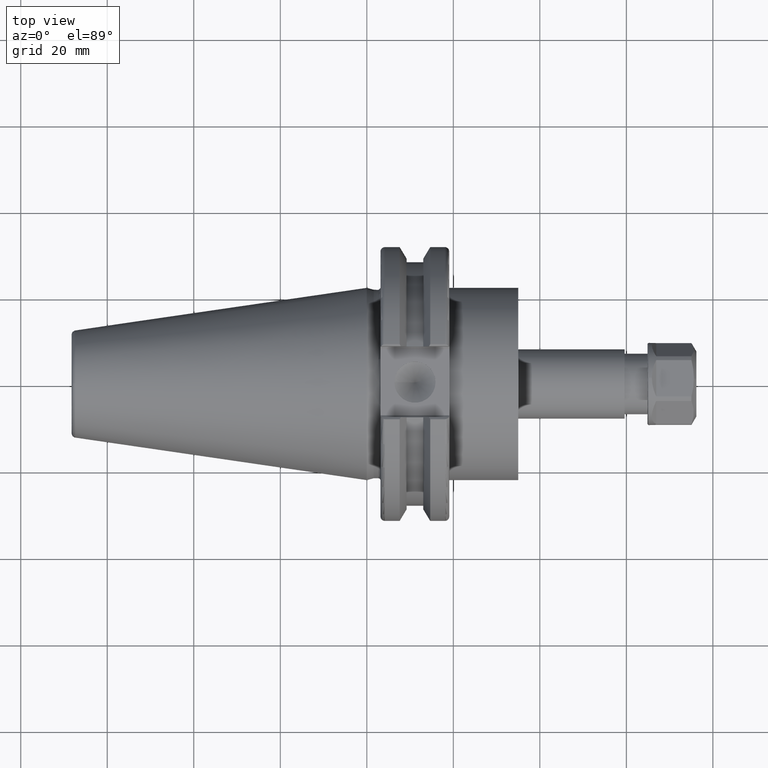
[diagram: clean part render]
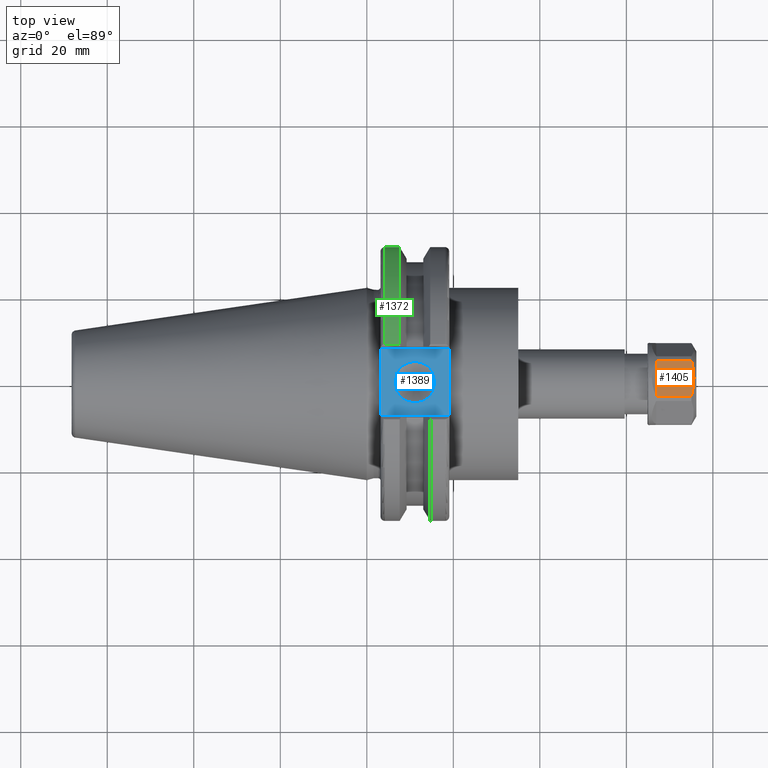
[diagram: same view with three faces highlighted in distinct colors, each labeled with its STEP entity id]
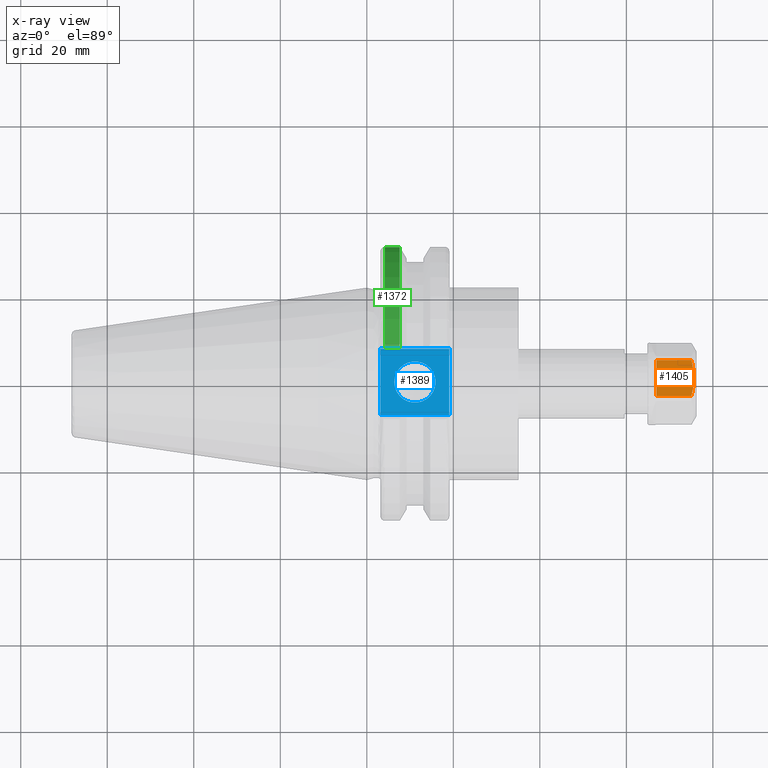
[diagram: x-ray of the same camera — body ghosted, the three highlighted faces saturated]
A machine part, top view with three faces highlighted in distinct colors.
The next image is the same camera in x-ray (body ghosted, the three faces saturated) — at least one of them is partly hidden behind the body in this view.
Their STEP definitions:

[orange] entity #1405 — the highlighted planar face has unit normal (0, -0.1388, -0.9903).
#50=(
BOUNDED_CURVE()
B_SPLINE_CURVE(2,(#2508,#2509,#2510),.UNSPECIFIED.,.F.,.F.)
B_SPLINE_CURVE_WITH_KNOTS((3,3),(1.71636261954149,2.57759920770742),
 .UNSPECIFIED.)
CURVE()
GEOMETRIC_REPRESENTATION_ITEM()
RATIONAL_B_SPLINE_CURVE((1.88000685099763,1.99059548929171,1.99059548929171))
REPRESENTATION_ITEM('')
);
#56=(
BOUNDED_CURVE()
B_SPLINE_CURVE(2,(#2543,#2544,#2545),.UNSPECIFIED.,.F.,.F.)
B_SPLINE_CURVE_WITH_KNOTS((3,3),(2.57759920770742,3.43883579587335),
 .UNSPECIFIED.)
CURVE()
GEOMETRIC_REPRESENTATION_ITEM()
RATIONAL_B_SPLINE_CURVE((1.99059548929171,1.99059548929171,1.88000685099763))
REPRESENTATION_ITEM('')
);
#128=PLANE('',#1624);
#220=FACE_OUTER_BOUND('',#313,.T.);
#313=EDGE_LOOP('',(#1286,#1287,#1288,#1289,#1290));
#403=LINE('',#2567,#496);
#405=LINE('',#2577,#498);
#410=LINE('',#2591,#503);
#496=VECTOR('',#1990,8.145299461621);
#498=VECTOR('',#2000,8.145299461621);
#503=VECTOR('',#2015,8.485281374239);
#678=VERTEX_POINT('',#2506);
#679=VERTEX_POINT('',#2507);
#690=VERTEX_POINT('',#2541);
#697=VERTEX_POINT('',#2566);
#701=VERTEX_POINT('',#2575);
#866=EDGE_CURVE('',#678,#679,#50,.T.);
#878=EDGE_CURVE('',#679,#690,#56,.T.);
#890=EDGE_CURVE('',#697,#678,#403,.T.);
#896=EDGE_CURVE('',#701,#690,#405,.T.);
#904=EDGE_CURVE('',#697,#701,#410,.T.);
#1286=ORIENTED_EDGE('',*,*,#904,.F.);
#1287=ORIENTED_EDGE('',*,*,#890,.T.);
#1288=ORIENTED_EDGE('',*,*,#866,.T.);
#1289=ORIENTED_EDGE('',*,*,#878,.T.);
#1290=ORIENTED_EDGE('',*,*,#896,.F.);
#1405=ADVANCED_FACE('',(#220),#128,.F.);
#1624=AXIS2_PLACEMENT_3D('',#2592,#2016,#2017);
#1990=DIRECTION('',(1.,0.,0.));
#2000=DIRECTION('',(1.,0.,0.));
#2015=DIRECTION('',(0.,1.,0.));
#2016=DIRECTION('center_axis',(0.,0.,-1.));
#2017=DIRECTION('ref_axis',(0.,1.,0.));
#2506=CARTESIAN_POINT('',(4.495299461621,-4.242640687119,8.5));
#2507=CARTESIAN_POINT('',(5.07264973081011,5.20474889637625E-16,8.5));
#2508=CARTESIAN_POINT('Ctrl Pts',(4.49529946161998,-4.24264068712126,8.5));
#2509=CARTESIAN_POINT('Ctrl Pts',(5.07264973081011,-2.00346921336272,8.5));
#2510=CARTESIAN_POINT('Ctrl Pts',(5.07264973081011,0.,8.5));
#2541=CARTESIAN_POINT('',(4.495299461621,4.242640687119,8.5));
#2543=CARTESIAN_POINT('Ctrl Pts',(5.07264973081011,0.,8.5));
#2544=CARTESIAN_POINT('Ctrl Pts',(5.07264973081011,2.00346921336272,8.5));
#2545=CARTESIAN_POINT('Ctrl Pts',(4.49529946161998,4.24264068712127,8.5));
#2566=CARTESIAN_POINT('',(-3.65,-4.242640687119,8.5));
#2567=CARTESIAN_POINT('',(-3.65,-4.242640687119,8.5));
#2575=CARTESIAN_POINT('',(-3.65,4.242640687119,8.5));
#2577=CARTESIAN_POINT('',(-3.65,4.242640687119,8.5));
#2591=CARTESIAN_POINT('',(-3.65,-4.242640687119,8.5));
#2592=CARTESIAN_POINT('Origin',(5.65,-10.,8.5));

[blue] entity #1389 — the highlighted planar face has unit normal (0, 0, 1).
#87=FACE_BOUND('',#293,.T.);
#120=PLANE('',#1583);
#204=FACE_OUTER_BOUND('',#292,.T.);
#292=EDGE_LOOP('',(#1194,#1195,#1196,#1197));
#293=EDGE_LOOP('',(#1198));
#332=LINE('',#2109,#425);
#351=LINE('',#2206,#444);
#376=LINE('',#2394,#469);
#378=LINE('',#2397,#471);
#425=VECTOR('',#1715,10.);
#444=VECTOR('',#1752,10.);
#469=VECTOR('',#1831,10.);
#471=VECTOR('',#1835,10.);
#547=CIRCLE('',#1566,4.7625);
#592=VERTEX_POINT('',#2106);
#593=VERTEX_POINT('',#2108);
#618=VERTEX_POINT('',#2203);
#619=VERTEX_POINT('',#2205);
#669=VERTEX_POINT('',#2454);
#735=EDGE_CURVE('',#592,#593,#332,.T.);
#766=EDGE_CURVE('',#618,#619,#351,.T.);
#820=EDGE_CURVE('',#619,#592,#376,.T.);
#822=EDGE_CURVE('',#593,#618,#378,.T.);
#844=EDGE_CURVE('',#669,#669,#547,.T.);
#1194=ORIENTED_EDGE('',*,*,#820,.F.);
#1195=ORIENTED_EDGE('',*,*,#766,.F.);
#1196=ORIENTED_EDGE('',*,*,#822,.F.);
#1197=ORIENTED_EDGE('',*,*,#735,.F.);
#1198=ORIENTED_EDGE('',*,*,#844,.T.);
#1389=ADVANCED_FACE('',(#204,#87),#120,.T.);
#1566=AXIS2_PLACEMENT_3D('',#2455,#1878,#1879);
#1583=AXIS2_PLACEMENT_3D('',#2473,#1913,#1914);
#1715=DIRECTION('',(0.,1.,0.));
#1752=DIRECTION('',(0.,-1.,0.));
#1831=DIRECTION('',(-1.,1.31581988103722E-16,0.));
#1835=DIRECTION('',(1.,0.,0.));
#1878=DIRECTION('center_axis',(0.,0.,-1.));
#1879=DIRECTION('ref_axis',(1.,0.,0.));
#1913=DIRECTION('center_axis',(0.,0.,1.));
#1914=DIRECTION('ref_axis',(1.,0.,0.));
#2106=CARTESIAN_POINT('',(3.175,-7.68999999999999,25.));
#2108=CARTESIAN_POINT('',(3.175,7.69,25.));
#2109=CARTESIAN_POINT('',(3.175,15.875,25.));
#2203=CARTESIAN_POINT('',(19.05,7.69,25.));
#2205=CARTESIAN_POINT('',(19.05,-7.69,25.));
#2206=CARTESIAN_POINT('',(19.05,0.,25.));
#2394=CARTESIAN_POINT('',(9.44125,-7.69,25.));
#2397=CARTESIAN_POINT('',(17.87875,7.69,25.));
#2454=CARTESIAN_POINT('',(6.3645,-5.83238038093927E-16,25.));
#2455=CARTESIAN_POINT('Origin',(11.127,0.,25.));
#2473=CARTESIAN_POINT('Origin',(15.7075,0.,25.));

[green] entity #1372 — the highlighted cylindrical surface (partial cylindrical patch) has radius 31.75 mm, axis along (1, 0, 0).
#187=FACE_OUTER_BOUND('',#275,.T.);
#275=EDGE_LOOP('',(#1119,#1120,#1121,#1122));
#372=LINE('',#2369,#465);
#386=LINE('',#2428,#479);
#465=VECTOR('',#1801,10.);
#479=VECTOR('',#1853,10.);
#535=CIRCLE('',#1534,31.75);
#543=CIRCLE('',#1555,31.75);
#649=VERTEX_POINT('',#2342);
#650=VERTEX_POINT('',#2351);
#651=VERTEX_POINT('',#2368);
#665=VERTEX_POINT('',#2427);
#806=EDGE_CURVE('',#649,#650,#535,.T.);
#809=EDGE_CURVE('',#650,#651,#372,.T.);
#834=EDGE_CURVE('',#665,#649,#386,.T.);
#835=EDGE_CURVE('',#651,#665,#543,.T.);
#1119=ORIENTED_EDGE('',*,*,#806,.F.);
#1120=ORIENTED_EDGE('',*,*,#834,.F.);
#1121=ORIENTED_EDGE('',*,*,#835,.F.);
#1122=ORIENTED_EDGE('',*,*,#809,.F.);
#1324=CYLINDRICAL_SURFACE('',#1554,31.75);
#1372=ADVANCED_FACE('',(#187),#1324,.T.);
#1534=AXIS2_PLACEMENT_3D('',#2352,#1797,#1798);
#1554=AXIS2_PLACEMENT_3D('',#2426,#1851,#1852);
#1555=AXIS2_PLACEMENT_3D('',#2429,#1854,#1855);
#1797=DIRECTION('center_axis',(-1.,0.,0.));
#1798=DIRECTION('ref_axis',(0.,1.,1.60812264967664E-16));
#1801=DIRECTION('',(1.,0.,0.));
#1851=DIRECTION('center_axis',(1.,0.,0.));
#1852=DIRECTION('ref_axis',(0.,1.,0.));
#1853=DIRECTION('',(-1.,0.,0.));
#1854=DIRECTION('center_axis',(1.,0.,0.));
#1855=DIRECTION('ref_axis',(0.,0.,-1.));
#2342=CARTESIAN_POINT('',(4.175,8.67204822802685,30.5427254764662));
#2351=CARTESIAN_POINT('',(4.175,8.67204822802685,-30.5427254764662));
#2352=CARTESIAN_POINT('Origin',(4.175,0.,0.));
#2368=CARTESIAN_POINT('',(7.60083323092435,8.67204822802685,-30.5427254764662));
#2369=CARTESIAN_POINT('',(5.38791661546218,8.67204822802685,-30.5427254764662));
#2426=CARTESIAN_POINT('Origin',(5.38791661546218,0.,0.));
#2427=CARTESIAN_POINT('',(7.60083323092435,8.67204822802685,30.5427254764662));
#2428=CARTESIAN_POINT('',(5.38791661546218,8.67204822802685,30.5427254764662));
#2429=CARTESIAN_POINT('Origin',(7.60083323092435,0.,0.));